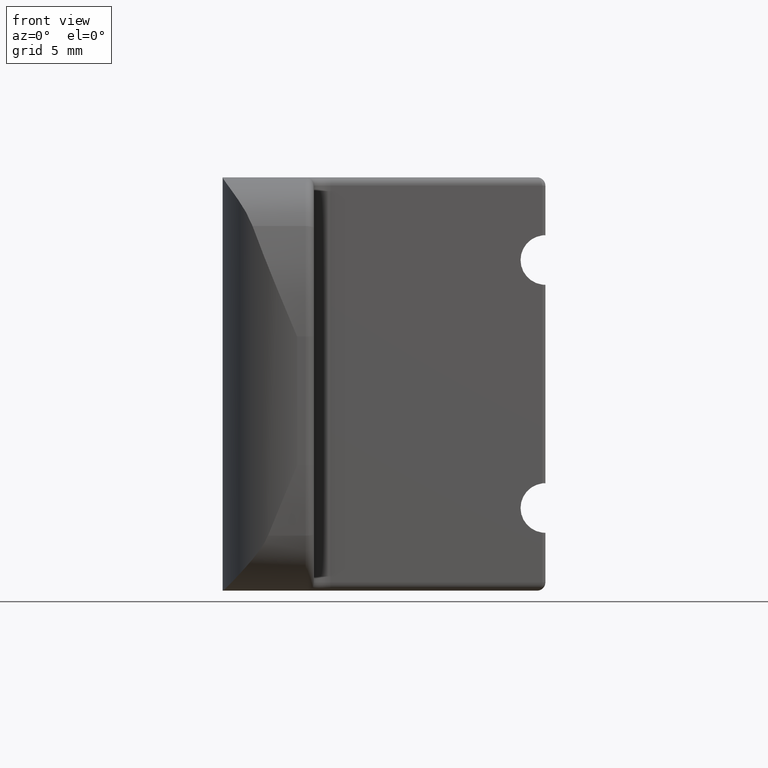
[diagram: clean part render]
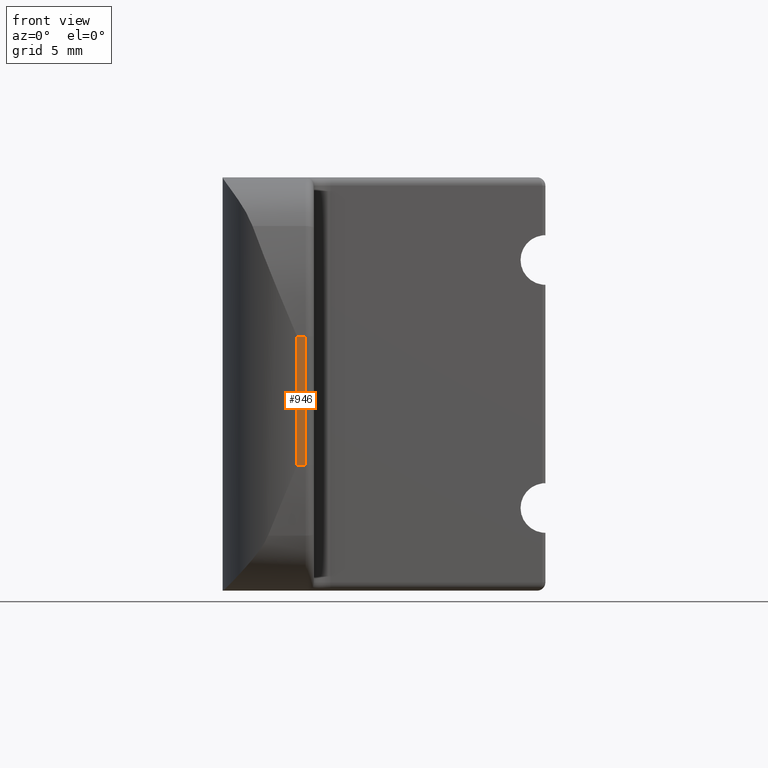
[diagram: same view with one face highlighted and labeled with its STEP entity id]
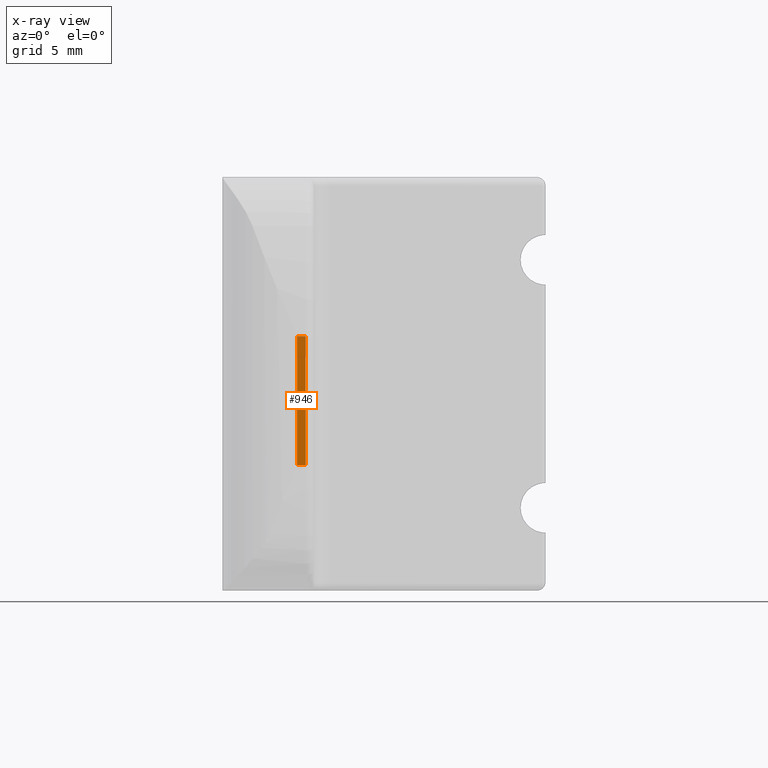
[diagram: x-ray of the same camera — body ghosted, the highlighted face saturated]
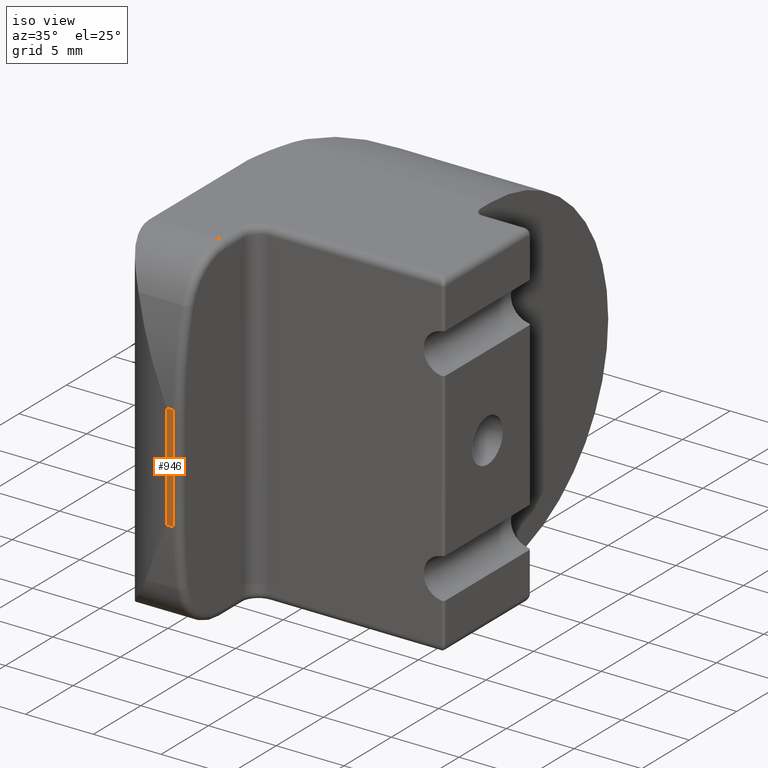
[diagram: same view with one face highlighted and labeled with its STEP entity id]
A machine part, front view. The second image highlights one B-rep face of the part: STEP entity #946.
The next image is the same camera in x-ray: the body ghosted, the highlighted face saturated — about 0% of this face is hidden behind the body in this view.
A second angle (iso view) of the same face is appended — the face is thin or edge-on in the first view.
In plain terms, the highlighted planar face has unit normal (-0, -1, 0).
Its self-contained STEP definition (entity closure, byte-faithful):
#35=PLANE('',#1063);
#61=LINE('',#1603,#130);
#79=LINE('',#1671,#148);
#80=LINE('',#1678,#149);
#81=LINE('',#1679,#150);
#130=VECTOR('',#1210,10.);
#148=VECTOR('',#1270,10.);
#149=VECTOR('',#1273,10.);
#150=VECTOR('',#1274,10.);
#242=FACE_OUTER_BOUND('',#300,.T.);
#300=EDGE_LOOP('',(#740,#741,#742,#743));
#427=VERTEX_POINT('',#1595);
#429=VERTEX_POINT('',#1601);
#446=VERTEX_POINT('',#1670);
#447=VERTEX_POINT('',#1677);
#529=EDGE_CURVE('',#429,#427,#61,.T.);
#559=EDGE_CURVE('',#446,#427,#79,.T.);
#561=EDGE_CURVE('',#447,#429,#80,.T.);
#562=EDGE_CURVE('',#446,#447,#81,.T.);
#740=ORIENTED_EDGE('',*,*,#529,.F.);
#741=ORIENTED_EDGE('',*,*,#561,.F.);
#742=ORIENTED_EDGE('',*,*,#562,.F.);
#743=ORIENTED_EDGE('',*,*,#559,.T.);
#946=ADVANCED_FACE('',(#242),#35,.T.);
#1063=AXIS2_PLACEMENT_3D('',#1676,#1271,#1272);
#1210=DIRECTION('',(0.,0.,-1.));
#1270=DIRECTION('',(1.,3.5527136788005E-16,0.));
#1271=DIRECTION('center_axis',(-2.18332947584064E-15,-1.,0.));
#1272=DIRECTION('ref_axis',(1.,-2.18332947584064E-15,0.));
#1273=DIRECTION('',(1.,3.5527136788005E-16,0.));
#1274=DIRECTION('',(0.,0.,1.));
#1595=CARTESIAN_POINT('',(-7.90000000000004,-12.4000000000001,-4.92553672812379));
#1601=CARTESIAN_POINT('',(-7.90000000000004,-12.4000000000001,2.87446327187621));
#1603=CARTESIAN_POINT('',(-7.90000000000004,-12.4000000000001,0.));
#1670=CARTESIAN_POINT('',(-8.41699998732233,-12.4,-4.92553672812379));
#1671=CARTESIAN_POINT('',(-7.40000000000004,-12.4000000000001,-4.92553672812379));
#1676=CARTESIAN_POINT('Origin',(-8.41699998732233,-12.4,0.));
#1677=CARTESIAN_POINT('',(-8.41699998732233,-12.4,2.87446327187621));
#1678=CARTESIAN_POINT('',(-7.40000000000004,-12.4000000000001,2.87446327187621));
#1679=CARTESIAN_POINT('',(-8.41699998732233,-12.4,0.));